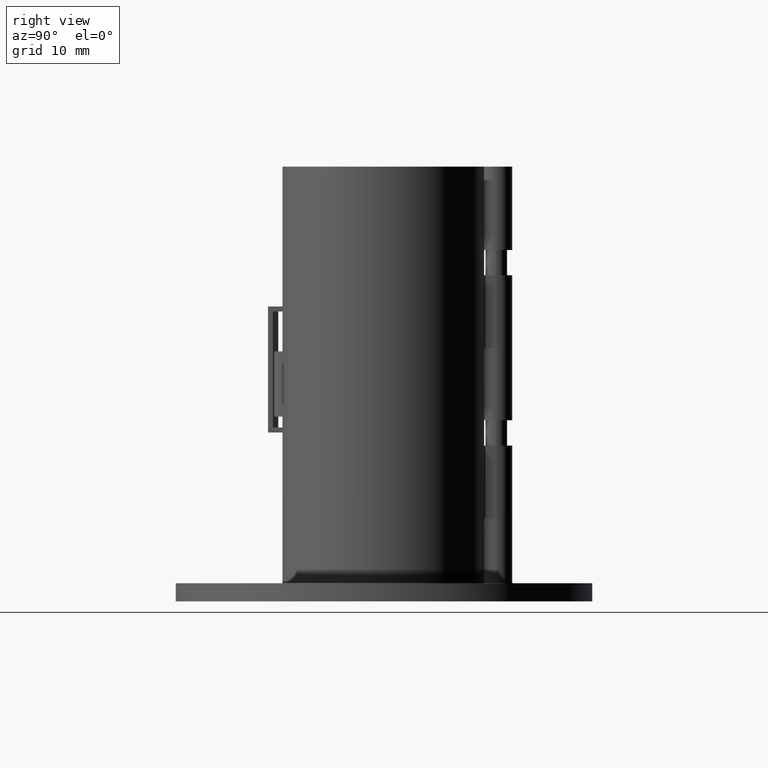
[diagram: clean part render]
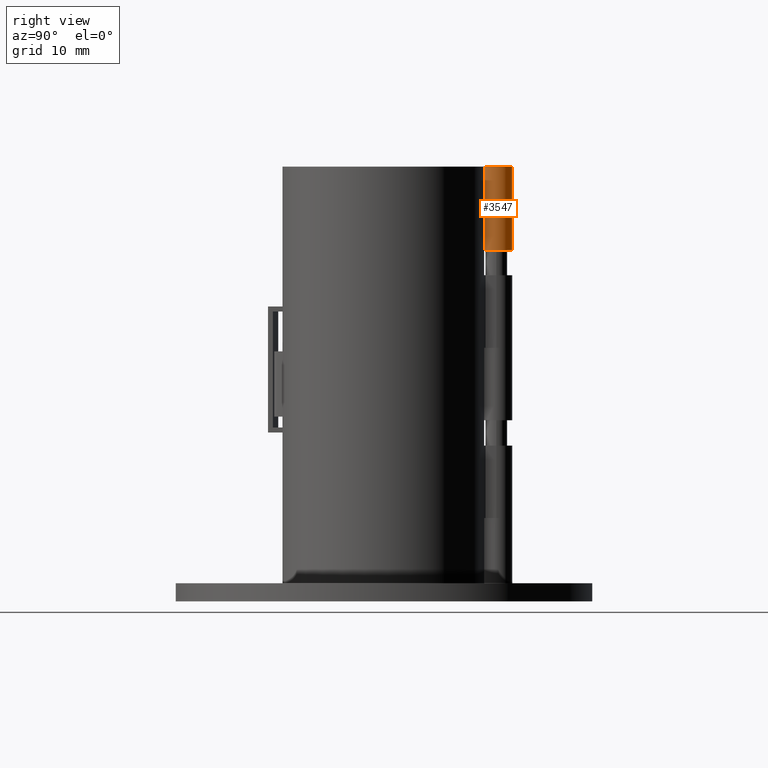
[diagram: same view with one face highlighted and labeled with its STEP entity id]
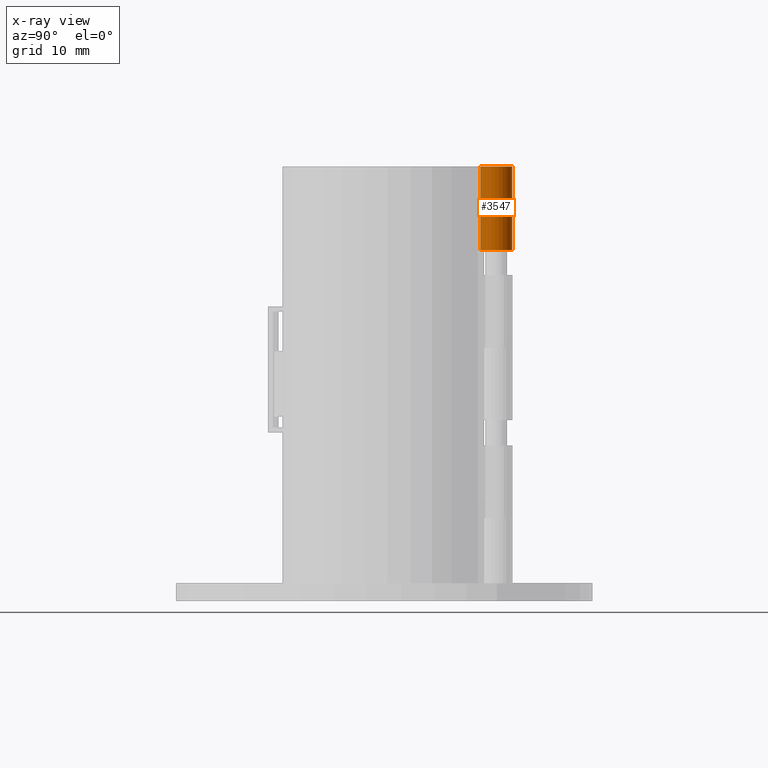
[diagram: x-ray of the same camera — body ghosted, the highlighted face saturated]
A machine part, right view. The second image highlights one B-rep face of the part: STEP entity #3547.
The next image is the same camera in x-ray: the body ghosted, the highlighted face saturated — about 0% of this face is hidden behind the body in this view.
In plain terms, the highlighted cylindrical surface (edge-blend (fillet) strip) has radius 2.2 mm, axis along (0, -0, -1).
Its self-contained STEP definition (entity closure, byte-faithful):
#3161=CARTESIAN_POINT('',(9.158785E-014,13.299999999999949,48.500000000000121));
#3162=VERTEX_POINT('',#3161);
#3170=CARTESIAN_POINT('',(9.158785E-014,13.299999999999951,60.000000000000114));
#3171=VERTEX_POINT('',#3170);
#3172=CARTESIAN_POINT('',(9.158785E-014,13.299999999999949,48.500000000000114));
#3173=DIRECTION('',(0.0,0.0,1.0));
#3174=VECTOR('',#3173,11.5);
#3175=LINE('',#3172,#3174);
#3176=EDGE_CURVE('',#3162,#3171,#3175,.T.);
#3423=CARTESIAN_POINT('',(-2.199999999999907,15.499999999999952,48.500000000000121));
#3424=VERTEX_POINT('',#3423);
#3431=CARTESIAN_POINT('',(9.361956E-014,15.499999999999952,48.500000000000121));
#3432=DIRECTION('',(0.0,0.0,1.0));
#3433=DIRECTION('',(-1.0,0.0,0.0));
#3434=AXIS2_PLACEMENT_3D('',#3431,#3432,#3433);
#3435=CIRCLE('',#3434,2.200000000000003);
#3436=EDGE_CURVE('',#3162,#3424,#3435,.T.);
#3523=CARTESIAN_POINT('',(9.361956E-014,15.499999999999952,30.000000000000114));
#3524=DIRECTION('',(8.281969E-032,-6.409495E-031,-1.0));
#3525=DIRECTION('',(-1.0,0.0,0.0));
#3526=AXIS2_PLACEMENT_3D('',#3523,#3524,#3525);
#3527=CYLINDRICAL_SURFACE('',#3526,2.200000000000003);
#3528=ORIENTED_EDGE('',*,*,#3436,.T.);
#3529=CARTESIAN_POINT('',(-2.199999999999908,15.499999999999952,60.000000000000114));
#3530=VERTEX_POINT('',#3529);
#3531=CARTESIAN_POINT('',(-2.199999999999908,15.49999999999995,48.500000000000121));
#3532=DIRECTION('',(0.0,0.0,1.0));
#3533=VECTOR('',#3532,11.499999999999993);
#3534=LINE('',#3531,#3533);
#3535=EDGE_CURVE('',#3424,#3530,#3534,.T.);
#3536=ORIENTED_EDGE('',*,*,#3535,.T.);
#3537=CARTESIAN_POINT('',(9.361956E-014,15.499999999999952,60.000000000000114));
#3538=DIRECTION('',(0.0,0.0,-1.0));
#3539=DIRECTION('',(-1.0,0.0,0.0));
#3540=AXIS2_PLACEMENT_3D('',#3537,#3538,#3539);
#3541=CIRCLE('',#3540,2.200000000000002);
#3542=EDGE_CURVE('',#3530,#3171,#3541,.T.);
#3543=ORIENTED_EDGE('',*,*,#3542,.T.);
#3544=ORIENTED_EDGE('',*,*,#3176,.F.);
#3545=EDGE_LOOP('',(#3528,#3536,#3543,#3544));
#3546=FACE_OUTER_BOUND('',#3545,.T.);
#3547=ADVANCED_FACE('',(#3546),#3527,.T.);